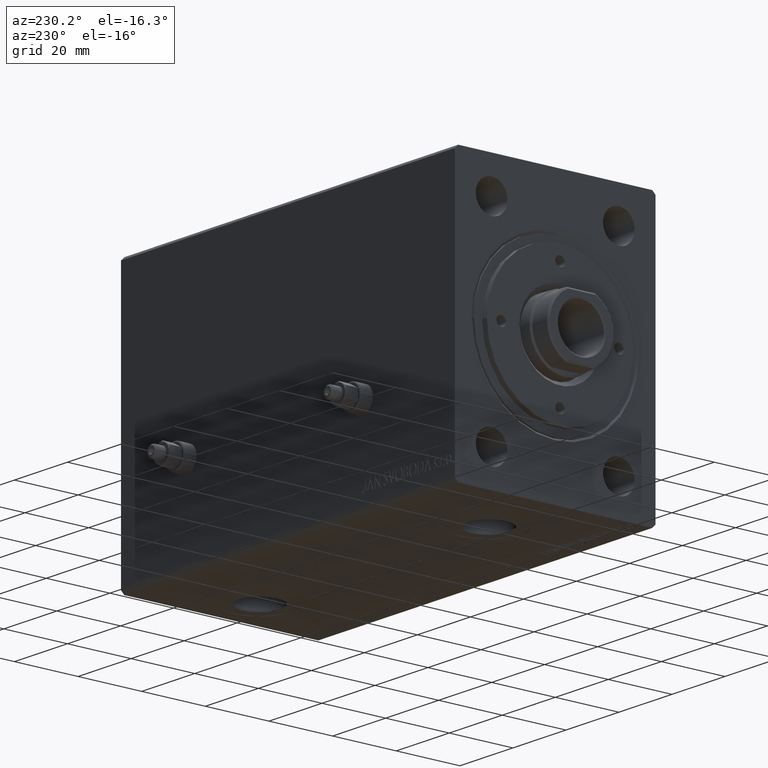
[diagram: clean part render]
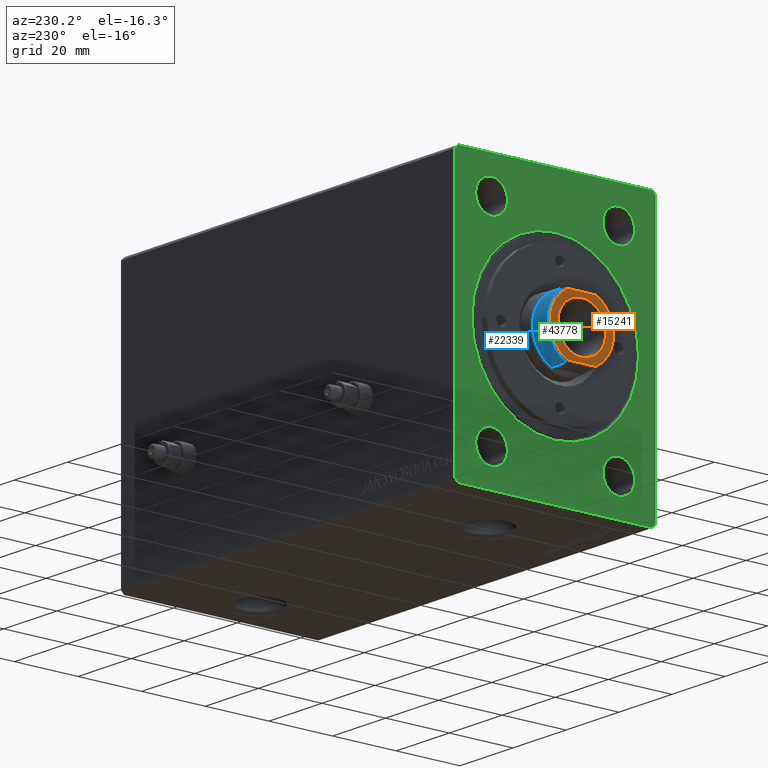
[diagram: same view with three faces highlighted in distinct colors, each labeled with its STEP entity id]
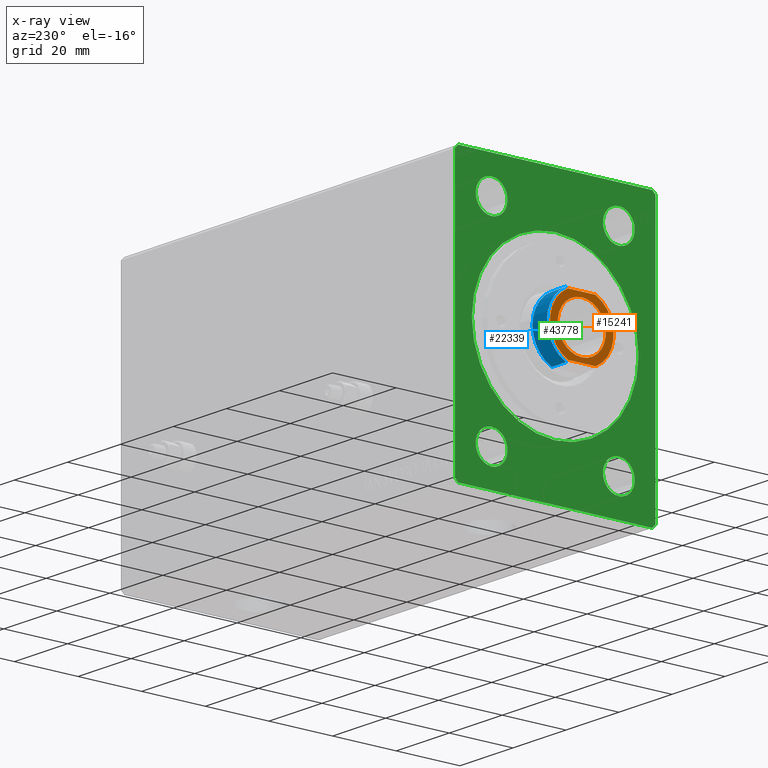
[diagram: x-ray of the same camera — body ghosted, the three highlighted faces saturated]
A machine part, auxiliary view with three faces highlighted in distinct colors.
The next image is the same camera in x-ray (body ghosted, the three faces saturated) — at least one of them is partly hidden behind the body in this view.
Their STEP definitions:

[orange] entity #15241 — the highlighted planar face has unit normal (-1, 0, 0).
#1446 = CARTESIAN_POINT ( 'NONE',  ( 9.000000000000000000, 4.358898943540597593, 120.7000000000000028 ) ) ;
#2655 = CARTESIAN_POINT ( 'NONE',  ( -9.000000000000000000, -4.358898943540601145, 120.7000000000000028 ) ) ;
#3030 = DIRECTION ( 'NONE',  ( -0.000000000000000000, -0.000000000000000000, -1.000000000000000000 ) ) ;
#3258 = DIRECTION ( 'NONE',  ( 1.000000000000000000, 0.000000000000000000, 0.000000000000000000 ) ) ;
#4592 = VERTEX_POINT ( 'NONE', #16580 ) ;
#5587 = DIRECTION ( 'NONE',  ( 0.000000000000000000, -1.000000000000000000, 0.000000000000000000 ) ) ;
#7276 = CIRCLE ( 'NONE', #32753, 9.999999999999966249 ) ;
#9410 = ORIENTED_EDGE ( 'NONE', *, *, #13163, .T. ) ;
#10203 = DIRECTION ( 'NONE',  ( 1.000000000000000000, 0.000000000000000000, 0.000000000000000000 ) ) ;
#10910 = ORIENTED_EDGE ( 'NONE', *, *, #18791, .T. ) ;
#13163 = EDGE_CURVE ( 'NONE', #31872, #16977, #17165, .T. ) ;
#14170 = VERTEX_POINT ( 'NONE', #20063 ) ;
#14906 = DIRECTION ( 'NONE',  ( 1.000000000000000000, 0.000000000000000000, 0.000000000000000000 ) ) ;
#15226 = CIRCLE ( 'NONE', #40691, 7.550000000000028244 ) ;
#15241 = ADVANCED_FACE ( 'NONE', ( #21387, #20926 ), #32086, .T. ) ;
#15472 = VECTOR ( 'NONE', #5587, 1000.000000000000000 ) ;
#15901 = EDGE_CURVE ( 'NONE', #16977, #35860, #22171, .T. ) ;
#16250 = ORIENTED_EDGE ( 'NONE', *, *, #28119, .T. ) ;
#16580 = CARTESIAN_POINT ( 'NONE',  ( -9.000000000000000000, 4.358898943540599369, 120.7000000000000028 ) ) ;
#16977 = VERTEX_POINT ( 'NONE', #29911 ) ;
#17165 = CIRCLE ( 'NONE', #28083, 9.999999999999968026 ) ;
#17191 = ORIENTED_EDGE ( 'NONE', *, *, #15901, .T. ) ;
#17959 = DIRECTION ( 'NONE',  ( 1.000000000000000000, 0.000000000000000000, -0.000000000000000000 ) ) ;
#18791 = EDGE_CURVE ( 'NONE', #31743, #14170, #15226, .T. ) ;
#19177 = EDGE_CURVE ( 'NONE', #14170, #31743, #44362, .T. ) ;
#19826 = ORIENTED_EDGE ( 'NONE', *, *, #19177, .T. ) ;
#20063 = CARTESIAN_POINT ( 'NONE',  ( 7.550000000000028244, 0.000000000000000000, 120.7000000000000028 ) ) ;
#20338 = CARTESIAN_POINT ( 'NONE',  ( 0.000000000000000000, 0.000000000000000000, 120.7000000000000028 ) ) ;
#20926 = FACE_BOUND ( 'NONE', #38886, .T. ) ;
#21387 = FACE_OUTER_BOUND ( 'NONE', #37251, .T. ) ;
#22171 = LINE ( 'NONE', #25359, #43461 ) ;
#22395 = DIRECTION ( 'NONE',  ( 0.000000000000000000, 1.000000000000000000, 0.000000000000000000 ) ) ;
#22678 = CARTESIAN_POINT ( 'NONE',  ( -9.000000000000000000, -4.472135954999504115, 120.7000000000000028 ) ) ;
#23412 = DIRECTION ( 'NONE',  ( 1.000000000000000000, 0.000000000000000000, 0.000000000000000000 ) ) ;
#25033 = DIRECTION ( 'NONE',  ( 0.000000000000000000, 0.000000000000000000, 1.000000000000000000 ) ) ;
#25359 = CARTESIAN_POINT ( 'NONE',  ( 9.000000000000000000, 4.472135954999504115, 120.7000000000000028 ) ) ;
#27064 = CARTESIAN_POINT ( 'NONE',  ( 0.000000000000000000, 0.000000000000000000, 120.7000000000000028 ) ) ;
#28083 = AXIS2_PLACEMENT_3D ( 'NONE', #44824, #34115, #23412 ) ;
#28119 = EDGE_CURVE ( 'NONE', #4592, #31872, #43633, .T. ) ;
#29324 = CARTESIAN_POINT ( 'NONE',  ( -7.550000000000028244, 9.246083333562550228E-16, 120.7000000000000028 ) ) ;
#29613 = AXIS2_PLACEMENT_3D ( 'NONE', #35278, #25033, #17959 ) ;
#29911 = CARTESIAN_POINT ( 'NONE',  ( 9.000000000000000000, -4.358898943540601145, 120.7000000000000028 ) ) ;
#30884 = EDGE_CURVE ( 'NONE', #35860, #4592, #7276, .T. ) ;
#31743 = VERTEX_POINT ( 'NONE', #29324 ) ;
#31872 = VERTEX_POINT ( 'NONE', #2655 ) ;
#32086 = PLANE ( 'NONE',  #29613 ) ;
#32753 = AXIS2_PLACEMENT_3D ( 'NONE', #27064, #45038, #10203 ) ;
#34115 = DIRECTION ( 'NONE',  ( 0.000000000000000000, 0.000000000000000000, 1.000000000000000000 ) ) ;
#35181 = CARTESIAN_POINT ( 'NONE',  ( 0.000000000000000000, 0.000000000000000000, 120.7000000000000028 ) ) ;
#35278 = CARTESIAN_POINT ( 'NONE',  ( 0.000000000000000000, 0.000000000000000000, 120.7000000000000028 ) ) ;
#35860 = VERTEX_POINT ( 'NONE', #1446 ) ;
#37251 = EDGE_LOOP ( 'NONE', ( #16250, #9410, #17191, #39643 ) ) ;
#38886 = EDGE_LOOP ( 'NONE', ( #19826, #10910 ) ) ;
#39643 = ORIENTED_EDGE ( 'NONE', *, *, #30884, .T. ) ;
#40691 = AXIS2_PLACEMENT_3D ( 'NONE', #35181, #42027, #14906 ) ;
#42027 = DIRECTION ( 'NONE',  ( -0.000000000000000000, -0.000000000000000000, -1.000000000000000000 ) ) ;
#42183 = AXIS2_PLACEMENT_3D ( 'NONE', #20338, #3030, #3258 ) ;
#43461 = VECTOR ( 'NONE', #22395, 1000.000000000000000 ) ;
#43633 = LINE ( 'NONE', #22678, #15472 ) ;
#44362 = CIRCLE ( 'NONE', #42183, 7.550000000000028244 ) ;
#44824 = CARTESIAN_POINT ( 'NONE',  ( 0.000000000000000000, 0.000000000000000000, 120.7000000000000028 ) ) ;
#45038 = DIRECTION ( 'NONE',  ( 0.000000000000000000, 0.000000000000000000, 1.000000000000000000 ) ) ;

[blue] entity #22339 — the highlighted cylindrical surface (partial cylindrical patch) has radius 10.5 mm, axis along (1, -0, -0).
#723 = DIRECTION ( 'NONE',  ( 0.000000000000000000, 0.000000000000000000, -1.000000000000000000 ) ) ;
#765 = CARTESIAN_POINT ( 'NONE',  ( -9.500000000000000000, 4.472135954999503227, 114.7000000000000028 ) ) ;
#1694 = VECTOR ( 'NONE', #26169, 1000.000000000000000 ) ;
#1805 = CARTESIAN_POINT ( 'NONE',  ( 9.500000000000000000, 4.472135954999504115, 120.7000000000000028 ) ) ;
#2153 = CARTESIAN_POINT ( 'NONE',  ( 9.500000000000000000, 4.472135954999504115, 114.7000000000000028 ) ) ;
#2388 = CIRCLE ( 'NONE', #24234, 10.49999999999996803 ) ;
#5897 = CIRCLE ( 'NONE', #37180, 10.49999999999996803 ) ;
#7579 = EDGE_CURVE ( 'NONE', #18195, #14785, #29365, .T. ) ;
#8016 = VERTEX_POINT ( 'NONE', #765 ) ;
#10086 = DIRECTION ( 'NONE',  ( -0.000000000000000000, -0.000000000000000000, -1.000000000000000000 ) ) ;
#11448 = ORIENTED_EDGE ( 'NONE', *, *, #37250, .F. ) ;
#13243 = EDGE_LOOP ( 'NONE', ( #11448, #19615, #20264, #14508 ) ) ;
#14167 = CARTESIAN_POINT ( 'NONE',  ( 0.000000000000000000, 0.000000000000000000, 120.7000000000000028 ) ) ;
#14189 = DIRECTION ( 'NONE',  ( 1.000000000000000000, 0.000000000000000000, 0.000000000000000000 ) ) ;
#14508 = ORIENTED_EDGE ( 'NONE', *, *, #38734, .T. ) ;
#14533 = LINE ( 'NONE', #34595, #14724 ) ;
#14724 = VECTOR ( 'NONE', #14770, 1000.000000000000000 ) ;
#14770 = DIRECTION ( 'NONE',  ( -0.000000000000000000, -0.000000000000000000, -1.000000000000000000 ) ) ;
#14785 = VERTEX_POINT ( 'NONE', #2153 ) ;
#18195 = VERTEX_POINT ( 'NONE', #26224 ) ;
#18832 = VERTEX_POINT ( 'NONE', #21518 ) ;
#19615 = ORIENTED_EDGE ( 'NONE', *, *, #29749, .T. ) ;
#20264 = ORIENTED_EDGE ( 'NONE', *, *, #7579, .T. ) ;
#20547 = CYLINDRICAL_SURFACE ( 'NONE', #38133, 10.49999999999996803 ) ;
#21518 = CARTESIAN_POINT ( 'NONE',  ( -9.500000000000000000, 4.472135954999502339, 120.2000000000000028 ) ) ;
#22339 = ADVANCED_FACE ( 'NONE', ( #41293 ), #20547, .T. ) ;
#23965 = DIRECTION ( 'NONE',  ( -1.000000000000000000, 0.000000000000000000, 0.000000000000000000 ) ) ;
#24234 = AXIS2_PLACEMENT_3D ( 'NONE', #28762, #723, #14189 ) ;
#25360 = DIRECTION ( 'NONE',  ( 1.000000000000000000, 0.000000000000000000, 0.000000000000000000 ) ) ;
#26169 = DIRECTION ( 'NONE',  ( -0.000000000000000000, -0.000000000000000000, -1.000000000000000000 ) ) ;
#26224 = CARTESIAN_POINT ( 'NONE',  ( 9.500000000000000000, 4.472135954999504115, 120.2000000000000028 ) ) ;
#28762 = CARTESIAN_POINT ( 'NONE',  ( 0.000000000000000000, 0.000000000000000000, 120.2000000000000028 ) ) ;
#29365 = LINE ( 'NONE', #1805, #1694 ) ;
#29749 = EDGE_CURVE ( 'NONE', #18832, #18195, #2388, .T. ) ;
#34595 = CARTESIAN_POINT ( 'NONE',  ( -9.500000000000000000, 4.472135954999502339, 120.7000000000000028 ) ) ;
#37180 = AXIS2_PLACEMENT_3D ( 'NONE', #39488, #39258, #25360 ) ;
#37250 = EDGE_CURVE ( 'NONE', #18832, #8016, #14533, .T. ) ;
#38133 = AXIS2_PLACEMENT_3D ( 'NONE', #14167, #10086, #23965 ) ;
#38734 = EDGE_CURVE ( 'NONE', #14785, #8016, #5897, .T. ) ;
#39258 = DIRECTION ( 'NONE',  ( 0.000000000000000000, 0.000000000000000000, 1.000000000000000000 ) ) ;
#39488 = CARTESIAN_POINT ( 'NONE',  ( 0.000000000000000000, 0.000000000000000000, 114.7000000000000028 ) ) ;
#41293 = FACE_OUTER_BOUND ( 'NONE', #13243, .T. ) ;

[green] entity #43778 — the highlighted planar face has unit normal (1, 0, 0).
#215 = EDGE_CURVE ( 'NONE', #13832, #8506, #36457, .T. ) ;
#249 = DIRECTION ( 'NONE',  ( 0.000000000000000000, 0.000000000000000000, -1.000000000000000000 ) ) ;
#1564 = VECTOR ( 'NONE', #9754, 1000.000000000000000 ) ;
#1679 = VERTEX_POINT ( 'NONE', #14755 ) ;
#1715 = DIRECTION ( 'NONE',  ( 0.000000000000000000, 0.000000000000000000, 1.000000000000000000 ) ) ;
#2331 = AXIS2_PLACEMENT_3D ( 'NONE', #40720, #17015, #12712 ) ;
#2618 = LINE ( 'NONE', #12871, #32934 ) ;
#2651 = CARTESIAN_POINT ( 'NONE',  ( 0.000000000000000000, 30.50000000000001776, -42.50000000000000711 ) ) ;
#2742 = DIRECTION ( 'NONE',  ( 0.000000000000000000, 0.000000000000000000, 1.000000000000000000 ) ) ;
#3189 = AXIS2_PLACEMENT_3D ( 'NONE', #36560, #22212, #1715 ) ;
#3715 = DIRECTION ( 'NONE',  ( -1.000000000000000000, -0.000000000000000000, -0.000000000000000000 ) ) ;
#3854 = ORIENTED_EDGE ( 'NONE', *, *, #38259, .F. ) ;
#4532 = EDGE_CURVE ( 'NONE', #11420, #33500, #40234, .T. ) ;
#4574 = CIRCLE ( 'NONE', #6033, 4.999999999999997335 ) ;
#4850 = EDGE_CURVE ( 'NONE', #34789, #1679, #33844, .T. ) ;
#4908 = LINE ( 'NONE', #39307, #24287 ) ;
#5728 = CARTESIAN_POINT ( 'NONE',  ( 0.000000000000000000, 0.000000000000000000, 26.20000000000000284 ) ) ;
#6033 = AXIS2_PLACEMENT_3D ( 'NONE', #45103, #11172, #14129 ) ;
#6048 = ORIENTED_EDGE ( 'NONE', *, *, #27502, .F. ) ;
#6061 = FACE_BOUND ( 'NONE', #30527, .T. ) ;
#6294 = DIRECTION ( 'NONE',  ( 0.000000000000000000, 0.000000000000000000, -1.000000000000000000 ) ) ;
#6311 = EDGE_CURVE ( 'NONE', #33443, #17640, #4908, .T. ) ;
#6342 = EDGE_CURVE ( 'NONE', #17640, #31770, #30559, .T. ) ;
#7023 = VERTEX_POINT ( 'NONE', #33161 ) ;
#7868 = LINE ( 'NONE', #10622, #22651 ) ;
#7956 = DIRECTION ( 'NONE',  ( 0.000000000000000000, 0.000000000000000000, -1.000000000000000000 ) ) ;
#8506 = VERTEX_POINT ( 'NONE', #12975 ) ;
#9273 = FACE_BOUND ( 'NONE', #44105, .T. ) ;
#9319 = VERTEX_POINT ( 'NONE', #18514 ) ;
#9520 = CARTESIAN_POINT ( 'NONE',  ( 0.000000000000000000, 30.50000000000001421, 42.49999999999999289 ) ) ;
#9702 = ORIENTED_EDGE ( 'NONE', *, *, #9954, .F. ) ;
#9709 = VERTEX_POINT ( 'NONE', #13809 ) ;
#9754 = DIRECTION ( 'NONE',  ( 0.000000000000000000, -1.000000000000000000, 0.000000000000000000 ) ) ;
#9766 = EDGE_CURVE ( 'NONE', #33500, #11420, #41052, .T. ) ;
#9945 = DIRECTION ( 'NONE',  ( -1.000000000000000000, -0.000000000000000000, -0.000000000000000000 ) ) ;
#9954 = EDGE_CURVE ( 'NONE', #8506, #13832, #38829, .T. ) ;
#10405 = AXIS2_PLACEMENT_3D ( 'NONE', #44558, #30653, #16534 ) ;
#10622 = CARTESIAN_POINT ( 'NONE',  ( 0.000000000000000000, -31.50000000000000000, -41.50000000000000711 ) ) ;
#11172 = DIRECTION ( 'NONE',  ( -1.000000000000000000, -0.000000000000000000, -0.000000000000000000 ) ) ;
#11420 = VERTEX_POINT ( 'NONE', #40712 ) ;
#12712 = DIRECTION ( 'NONE',  ( 0.000000000000000000, 0.000000000000000000, 1.000000000000000000 ) ) ;
#12871 = CARTESIAN_POINT ( 'NONE',  ( 0.000000000000000000, 31.50000000000001421, -41.50000000000000711 ) ) ;
#12916 = CARTESIAN_POINT ( 'NONE',  ( 0.000000000000000000, 0.000000000000000000, 0.000000000000000000 ) ) ;
#12975 = CARTESIAN_POINT ( 'NONE',  ( 1.224646799147350495E-16, -20.00000000000000355, 26.50000000000000355 ) ) ;
#13362 = DIRECTION ( 'NONE',  ( 0.000000000000000000, 1.000000000000000000, 0.000000000000000000 ) ) ;
#13463 = CARTESIAN_POINT ( 'NONE',  ( 1.224646799147350495E-16, -20.00000000000000355, -31.50000000000000000 ) ) ;
#13809 = CARTESIAN_POINT ( 'NONE',  ( 1.224646799147350495E-16, 19.99999999999999645, 26.50000000000000355 ) ) ;
#13832 = VERTEX_POINT ( 'NONE', #34227 ) ;
#14129 = DIRECTION ( 'NONE',  ( 0.000000000000000000, 0.000000000000000000, 1.000000000000000000 ) ) ;
#14257 = DIRECTION ( 'NONE',  ( 0.000000000000000000, 0.7071067811865451302, -0.7071067811865500152 ) ) ;
#14755 = CARTESIAN_POINT ( 'NONE',  ( 0.000000000000000000, 30.50000000000001421, 42.49999999999999289 ) ) ;
#15451 = ORIENTED_EDGE ( 'NONE', *, *, #9766, .T. ) ;
#16369 = AXIS2_PLACEMENT_3D ( 'NONE', #30215, #44109, #37724 ) ;
#16524 = DIRECTION ( 'NONE',  ( 0.000000000000000000, -0.7071067811865474617, 0.7071067811865474617 ) ) ;
#16534 = DIRECTION ( 'NONE',  ( 0.000000000000000000, 0.000000000000000000, -1.000000000000000000 ) ) ;
#16589 = VERTEX_POINT ( 'NONE', #23589 ) ;
#16718 = DIRECTION ( 'NONE',  ( 0.000000000000000000, 0.000000000000000000, 1.000000000000000000 ) ) ;
#16973 = ORIENTED_EDGE ( 'NONE', *, *, #36187, .F. ) ;
#17015 = DIRECTION ( 'NONE',  ( -1.000000000000000000, -0.000000000000000000, -0.000000000000000000 ) ) ;
#17640 = VERTEX_POINT ( 'NONE', #19941 ) ;
#17670 = CARTESIAN_POINT ( 'NONE',  ( 1.224646799147350495E-16, 19.99999999999999645, 36.50000000000000000 ) ) ;
#17809 = CARTESIAN_POINT ( 'NONE',  ( 1.224646799147350495E-16, -20.00000000000000355, -31.50000000000000000 ) ) ;
#18242 = EDGE_LOOP ( 'NONE', ( #22086, #28909 ) ) ;
#18316 = AXIS2_PLACEMENT_3D ( 'NONE', #28545, #3715, #24003 ) ;
#18514 = CARTESIAN_POINT ( 'NONE',  ( 0.000000000000000000, 31.50000000000001421, -41.50000000000000711 ) ) ;
#18846 = CARTESIAN_POINT ( 'NONE',  ( 0.000000000000000000, -31.50000000000000000, -41.50000000000000711 ) ) ;
#19941 = CARTESIAN_POINT ( 'NONE',  ( 0.000000000000000000, -31.50000000000000000, 41.49999999999999289 ) ) ;
#19965 = FACE_OUTER_BOUND ( 'NONE', #30649, .T. ) ;
#21517 = ORIENTED_EDGE ( 'NONE', *, *, #28915, .F. ) ;
#21972 = CIRCLE ( 'NONE', #2331, 4.999999999999997335 ) ;
#22086 = ORIENTED_EDGE ( 'NONE', *, *, #26512, .F. ) ;
#22212 = DIRECTION ( 'NONE',  ( -1.000000000000000000, -0.000000000000000000, -0.000000000000000000 ) ) ;
#22255 = VERTEX_POINT ( 'NONE', #40836 ) ;
#22651 = VECTOR ( 'NONE', #14257, 1000.000000000000114 ) ;
#23147 = LINE ( 'NONE', #44555, #38198 ) ;
#23372 = FACE_BOUND ( 'NONE', #33392, .T. ) ;
#23512 = CARTESIAN_POINT ( 'NONE',  ( 1.224646799147350495E-16, 19.99999999999999645, -26.50000000000000355 ) ) ;
#23589 = CARTESIAN_POINT ( 'NONE',  ( 0.000000000000000000, -30.50000000000000711, -42.50000000000000711 ) ) ;
#24003 = DIRECTION ( 'NONE',  ( 0.000000000000000000, 0.000000000000000000, 1.000000000000000000 ) ) ;
#24287 = VECTOR ( 'NONE', #36566, 999.9999999999998863 ) ;
#24403 = CARTESIAN_POINT ( 'NONE',  ( 0.000000000000000000, -31.50000000000000000, 41.49999999999999289 ) ) ;
#24898 = EDGE_CURVE ( 'NONE', #16589, #39726, #23147, .T. ) ;
#24901 = EDGE_CURVE ( 'NONE', #9709, #34787, #44011, .T. ) ;
#25962 = DIRECTION ( 'NONE',  ( 1.000000000000000000, 0.000000000000000000, 0.000000000000000000 ) ) ;
#26158 = EDGE_CURVE ( 'NONE', #31770, #16589, #7868, .T. ) ;
#26208 = ORIENTED_EDGE ( 'NONE', *, *, #35495, .F. ) ;
#26236 = VERTEX_POINT ( 'NONE', #39302 ) ;
#26512 = EDGE_CURVE ( 'NONE', #34787, #9709, #30719, .T. ) ;
#26581 = FACE_BOUND ( 'NONE', #18242, .T. ) ;
#27022 = AXIS2_PLACEMENT_3D ( 'NONE', #43884, #9945, #33854 ) ;
#27502 = EDGE_CURVE ( 'NONE', #9319, #34789, #2618, .T. ) ;
#28505 = EDGE_CURVE ( 'NONE', #39726, #9319, #37486, .T. ) ;
#28545 = CARTESIAN_POINT ( 'NONE',  ( 1.224646799147350495E-16, 19.99999999999999645, 31.50000000000000000 ) ) ;
#28909 = ORIENTED_EDGE ( 'NONE', *, *, #24901, .F. ) ;
#28915 = EDGE_CURVE ( 'NONE', #26236, #22255, #43145, .T. ) ;
#29327 = AXIS2_PLACEMENT_3D ( 'NONE', #17809, #38109, #41970 ) ;
#30052 = VECTOR ( 'NONE', #16524, 1000.000000000000114 ) ;
#30215 = CARTESIAN_POINT ( 'NONE',  ( 1.224646799147350495E-16, 19.99999999999999645, 31.50000000000000000 ) ) ;
#30527 = EDGE_LOOP ( 'NONE', ( #15451, #31310 ) ) ;
#30559 = LINE ( 'NONE', #24403, #40304 ) ;
#30649 = EDGE_LOOP ( 'NONE', ( #36208, #6048, #40354, #38251, #34624, #41676, #33013, #26208 ) ) ;
#30653 = DIRECTION ( 'NONE',  ( 1.000000000000000000, 0.000000000000000000, 0.000000000000000000 ) ) ;
#30719 = CIRCLE ( 'NONE', #18316, 4.999999999999997335 ) ;
#30751 = DIRECTION ( 'NONE',  ( -1.000000000000000000, -0.000000000000000000, -0.000000000000000000 ) ) ;
#30875 = CARTESIAN_POINT ( 'NONE',  ( 0.000000000000000000, 30.50000000000001776, -42.50000000000000711 ) ) ;
#30883 = EDGE_LOOP ( 'NONE', ( #3854, #40966 ) ) ;
#31310 = ORIENTED_EDGE ( 'NONE', *, *, #4532, .T. ) ;
#31398 = AXIS2_PLACEMENT_3D ( 'NONE', #13463, #30751, #2742 ) ;
#31770 = VERTEX_POINT ( 'NONE', #18846 ) ;
#32454 = ORIENTED_EDGE ( 'NONE', *, *, #215, .F. ) ;
#32934 = VECTOR ( 'NONE', #16718, 1000.000000000000000 ) ;
#32959 = CARTESIAN_POINT ( 'NONE',  ( 0.000000000000000000, 31.50000000000001421, 41.49999999999999289 ) ) ;
#33013 = ORIENTED_EDGE ( 'NONE', *, *, #6311, .F. ) ;
#33161 = CARTESIAN_POINT ( 'NONE',  ( 1.224646799147350495E-16, 19.99999999999999645, -36.50000000000000000 ) ) ;
#33392 = EDGE_LOOP ( 'NONE', ( #32454, #9702 ) ) ;
#33443 = VERTEX_POINT ( 'NONE', #42450 ) ;
#33500 = VERTEX_POINT ( 'NONE', #5728 ) ;
#33844 = LINE ( 'NONE', #32959, #30052 ) ;
#33853 = PLANE ( 'NONE',  #10405 ) ;
#33854 = DIRECTION ( 'NONE',  ( 0.000000000000000000, 0.000000000000000000, 1.000000000000000000 ) ) ;
#34227 = CARTESIAN_POINT ( 'NONE',  ( 1.224646799147350495E-16, -20.00000000000000355, 36.50000000000000000 ) ) ;
#34299 = CIRCLE ( 'NONE', #31398, 4.999999999999997335 ) ;
#34624 = ORIENTED_EDGE ( 'NONE', *, *, #26158, .F. ) ;
#34787 = VERTEX_POINT ( 'NONE', #17670 ) ;
#34789 = VERTEX_POINT ( 'NONE', #35220 ) ;
#35220 = CARTESIAN_POINT ( 'NONE',  ( 0.000000000000000000, 31.50000000000001421, 41.49999999999999289 ) ) ;
#35289 = VERTEX_POINT ( 'NONE', #23512 ) ;
#35495 = EDGE_CURVE ( 'NONE', #1679, #33443, #40726, .T. ) ;
#36187 = EDGE_CURVE ( 'NONE', #22255, #26236, #34299, .T. ) ;
#36208 = ORIENTED_EDGE ( 'NONE', *, *, #4850, .F. ) ;
#36457 = CIRCLE ( 'NONE', #27022, 4.999999999999997335 ) ;
#36560 = CARTESIAN_POINT ( 'NONE',  ( 1.224646799147350495E-16, -20.00000000000000355, 31.50000000000000000 ) ) ;
#36566 = DIRECTION ( 'NONE',  ( 0.000000000000000000, -0.7071067811865462405, -0.7071067811865489050 ) ) ;
#37044 = FACE_BOUND ( 'NONE', #30883, .T. ) ;
#37249 = DIRECTION ( 'NONE',  ( 0.000000000000000000, 0.7071067811865462405, 0.7071067811865489050 ) ) ;
#37277 = DIRECTION ( 'NONE',  ( 1.000000000000000000, 0.000000000000000000, 0.000000000000000000 ) ) ;
#37486 = LINE ( 'NONE', #30875, #41650 ) ;
#37724 = DIRECTION ( 'NONE',  ( 0.000000000000000000, 0.000000000000000000, 1.000000000000000000 ) ) ;
#38109 = DIRECTION ( 'NONE',  ( -1.000000000000000000, -0.000000000000000000, -0.000000000000000000 ) ) ;
#38116 = AXIS2_PLACEMENT_3D ( 'NONE', #12916, #37277, #6294 ) ;
#38198 = VECTOR ( 'NONE', #13362, 1000.000000000000000 ) ;
#38251 = ORIENTED_EDGE ( 'NONE', *, *, #24898, .F. ) ;
#38259 = EDGE_CURVE ( 'NONE', #35289, #7023, #21972, .T. ) ;
#38829 = CIRCLE ( 'NONE', #3189, 4.999999999999997335 ) ;
#39169 = CARTESIAN_POINT ( 'NONE',  ( 0.000000000000000000, 0.000000000000000000, 0.000000000000000000 ) ) ;
#39302 = CARTESIAN_POINT ( 'NONE',  ( 1.224646799147350495E-16, -20.00000000000000355, -36.50000000000000000 ) ) ;
#39307 = CARTESIAN_POINT ( 'NONE',  ( 0.000000000000000000, -30.50000000000000355, 42.49999999999999289 ) ) ;
#39726 = VERTEX_POINT ( 'NONE', #2651 ) ;
#40234 = CIRCLE ( 'NONE', #40991, 26.20000000000000284 ) ;
#40304 = VECTOR ( 'NONE', #249, 1000.000000000000000 ) ;
#40354 = ORIENTED_EDGE ( 'NONE', *, *, #28505, .F. ) ;
#40712 = CARTESIAN_POINT ( 'NONE',  ( 0.000000000000000000, 3.208574613766065694E-15, -26.20000000000000284 ) ) ;
#40720 = CARTESIAN_POINT ( 'NONE',  ( 1.224646799147350495E-16, 19.99999999999999645, -31.50000000000000000 ) ) ;
#40726 = LINE ( 'NONE', #9520, #1564 ) ;
#40836 = CARTESIAN_POINT ( 'NONE',  ( 1.224646799147350495E-16, -20.00000000000000355, -26.50000000000000355 ) ) ;
#40966 = ORIENTED_EDGE ( 'NONE', *, *, #43443, .F. ) ;
#40991 = AXIS2_PLACEMENT_3D ( 'NONE', #39169, #25962, #7956 ) ;
#41052 = CIRCLE ( 'NONE', #38116, 26.20000000000000284 ) ;
#41650 = VECTOR ( 'NONE', #37249, 999.9999999999998863 ) ;
#41676 = ORIENTED_EDGE ( 'NONE', *, *, #6342, .F. ) ;
#41970 = DIRECTION ( 'NONE',  ( 0.000000000000000000, 0.000000000000000000, 1.000000000000000000 ) ) ;
#42450 = CARTESIAN_POINT ( 'NONE',  ( 0.000000000000000000, -30.50000000000000355, 42.49999999999999289 ) ) ;
#43145 = CIRCLE ( 'NONE', #29327, 4.999999999999997335 ) ;
#43443 = EDGE_CURVE ( 'NONE', #7023, #35289, #4574, .T. ) ;
#43778 = ADVANCED_FACE ( 'NONE', ( #26581, #9273, #37044, #23372, #6061, #19965 ), #33853, .F. ) ;
#43884 = CARTESIAN_POINT ( 'NONE',  ( 1.224646799147350495E-16, -20.00000000000000355, 31.50000000000000000 ) ) ;
#44011 = CIRCLE ( 'NONE', #16369, 4.999999999999997335 ) ;
#44105 = EDGE_LOOP ( 'NONE', ( #16973, #21517 ) ) ;
#44109 = DIRECTION ( 'NONE',  ( -1.000000000000000000, -0.000000000000000000, -0.000000000000000000 ) ) ;
#44555 = CARTESIAN_POINT ( 'NONE',  ( 0.000000000000000000, -30.50000000000000711, -42.50000000000000711 ) ) ;
#44558 = CARTESIAN_POINT ( 'NONE',  ( 0.000000000000000000, 0.000000000000000000, 0.000000000000000000 ) ) ;
#45103 = CARTESIAN_POINT ( 'NONE',  ( 1.224646799147350495E-16, 19.99999999999999645, -31.50000000000000000 ) ) ;